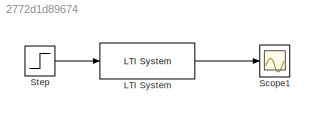
MODEL slx_2772d1d89674
KIND model
BLOCK [Reference] LTI System  REF=cstblocks/LTI System
  IC = []
  Ports = [1, 1]
  SourceBlock = cstblocks/LTI System
  SourceType = LTI Block
  sys = G
BLOCK [Scope] Scope1
  Floating = off
  NumInputPorts = 1
  Ports = [1]
  SaveName = ScopeData1
  ShowLegends = off
  ZoomMode = xonly
BLOCK [Step] Step
  After = 440
  SampleTime = 0
  Time = 0
LINE LTI System:1 -> Scope1:1
LINE Step:1 -> LTI System:1
